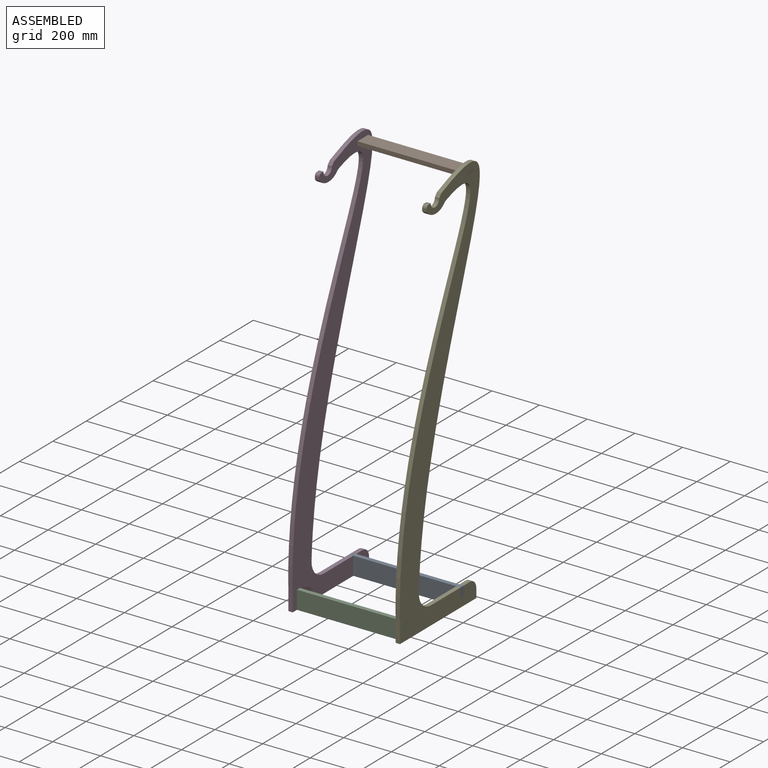
[diagram: assembled view]
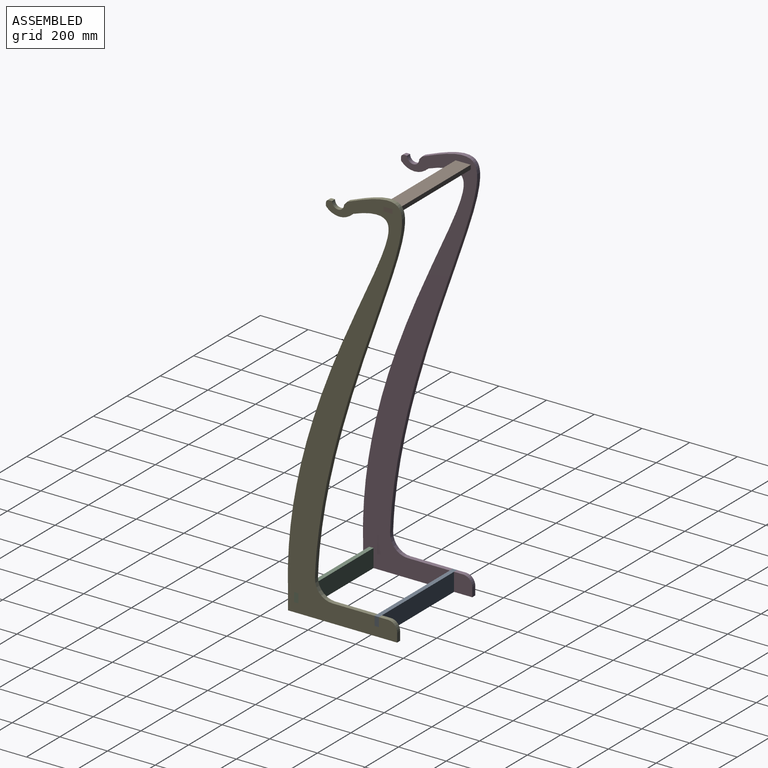
[diagram: assembled view, second angle]
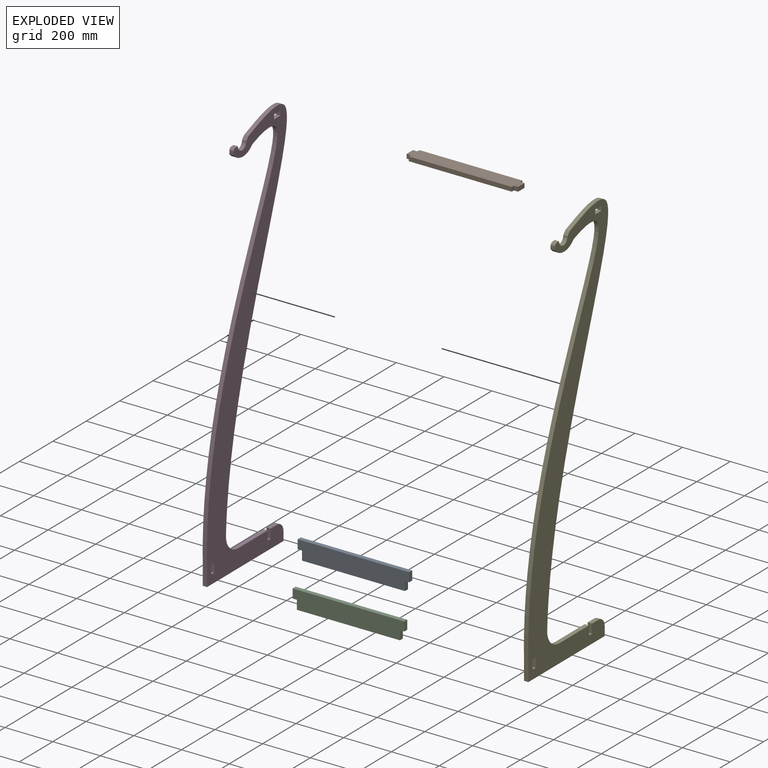
[diagram: exploded view]
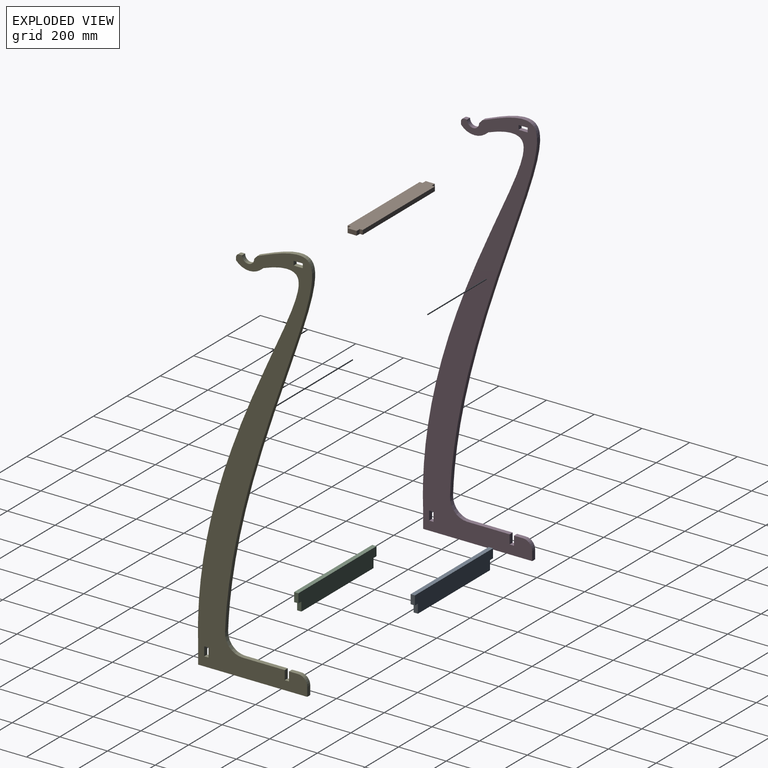
[diagram: exploded view, second angle]
ASSEMBLY  parts=5 mates=4
PART A: 10 faces, bbox 467.9x18x76.2 mm
  f0: plane 38.1x18.03mm, normal (1,0,0), area 687.1mm2, adj f1,f7,f8,f9
  f1: plane 18.03x18.03mm, normal (0,0,-1), area 325.2mm2, adj f0,f2,f8,f9
  f2: plane 38.1x18.03mm, normal (1,0,0), area 687.1mm2, adj f1,f3,f8,f9
  f3: plane 467.87x18.03mm, normal (0,0,1), area 8437.5mm2, adj f2,f4,f8,f9
  f4: plane 38.1x18.03mm, normal (-1,0,0), area 687.1mm2, adj f3,f5,f8,f9
  f5: plane 18.03x18.03mm, normal (0,0,-1), area 325.2mm2, adj f4,f6,f8,f9
  f6: plane 38.1x18.03mm, normal (-1,0,0), area 687.1mm2, adj f5,f7,f8,f9
  f7: plane 431.8x18.03mm, normal (0,0,-1), area 7787.1mm2, adj f0,f6,f8,f9
  f8: plane 467.87x76.2mm, normal (0,-1,0), area 34277.4mm2, adj f0,f1,f2,f3,f4,f5,f6,f7
  f9: plane 467.87x76.2mm, normal (0,1,0), area 34277.4mm2, adj f0,f1,f2,f3,f4,f5,f6,f7
PART B: 14 faces, bbox 467.9x18x63.5 mm
  f0: plane 18.03x18.03mm, normal (0,0,-1), area 325.2mm2, adj f1,f11,f12,f13
  f1: plane 18.03x12.7mm, normal (-1,0,0), area 229mm2, adj f0,f2,f12,f13
  f2: plane 431.8x18.03mm, normal (0,0,-1), area 7787.1mm2, adj f1,f3,f12,f13
  f3: plane 18.03x12.7mm, normal (1,0,0), area 229mm2, adj f2,f4,f12,f13
  f4: plane 18.03x18.03mm, normal (0,0,-1), area 325.2mm2, adj f3,f5,f12,f13
  f5: plane 38.1x18.03mm, normal (1,0,0), area 687.1mm2, adj f4,f6,f12,f13
  f6: plane 18.03x18.03mm, normal (0,0,1), area 325.2mm2, adj f5,f7,f12,f13
  f7: plane 18.03x12.7mm, normal (1,0,0), area 229mm2, adj f6,f8,f12,f13
  f8: plane 431.8x18.03mm, normal (0,0,1), area 7787.1mm2, adj f7,f9,f12,f13
  f9: plane 18.03x12.7mm, normal (-1,0,0), area 229mm2, adj f8,f10,f12,f13
  f10: plane 18.03x18.03mm, normal (0,0,1), area 325.2mm2, adj f9,f11,f12,f13
  f11: plane 38.1x18.03mm, normal (-1,0,0), area 687.1mm2, adj f0,f10,f12,f13
  f12: plane 467.87x63.5mm, normal (0,-1,0), area 28793.5mm2, adj f0,f1,f2,f3,f4,f5,f6,f7
  f13: plane 467.87x63.5mm, normal (0,1,0), area 28793.5mm2, adj f0,f1,f2,f3,f4,f5,f6,f7
PART C: same geometry as A
PART D: 28 faces, bbox 568.9x18x1738 mm
  f0: plane 38.1x18.03mm, normal (0,0,1), area 687.1mm2, adj f1,f25,f26,f27
  f1: plane 18.03x18.03mm, normal (1,0,0), area 325.2mm2, adj f0,f2,f26,f27
  f2: plane 38.1x18.03mm, normal (0,0,-1), area 687.1mm2, adj f1,f25,f26,f27
  f3: extruded ~1522.97x421.88mm, area 31258.7mm2, adj f4,f23,f26,f27
  f4: plane 76.2x18.03mm, normal (-1,0,0), area 1374.2mm2, adj f3,f5,f26,f27
  f5: plane 457.2x18.03mm, normal (0,0,-1), area 8245.1mm2, adj f4,f6,f26,f27
  f6: plane 38.1x18.03mm, normal (1,0,0), area 687.1mm2, adj f5,f7,f26,f27
  f7: cylinder r=38.1mm len=38.1mm, axis (0,1,0), area 1079.3mm2, adj f6,f8,f26,f27
  f8: plane 38.1x18.03mm, normal (0,0,1), area 687.1mm2, adj f7,f9,f26,f27
  f9: plane 38.1x18.03mm, normal (-1,0,0), area 687.1mm2, adj f8,f10,f26,f27
  f10: plane 18.03x18.03mm, normal (0,0,1), area 325.2mm2, adj f9,f11,f26,f27
  f11: plane 38.1x18.03mm, normal (1,0,0), area 687.1mm2, adj f10,f12,f26,f27
  f12: plane 177.68x18.03mm, normal (0,0,1), area 3204.3mm2, adj f11,f13,f26,f27
  f13: cylinder r=72.43mm len=75.13mm, axis (0,1,0), area 2100.5mm2, adj f12,f14,f26,f27
  f14: extruded ~1513.2x365.02mm, area 32102.9mm2, adj f13,f15,f26,f27
  f15: plane 18.03x14.2mm, normal (-0.75,0,0.67), area 343.5mm2, adj f14,f16,f26,f27
  f16: cylinder r=25.4mm len=50.8mm, axis (0,1,0), area 1439mm2, adj f15,f17,f26,f27
  f17: plane 18.03x12.7mm, normal (0,0,1), area 229mm2, adj f16,f18,f26,f27
  f18: cylinder r=12.7mm len=18.03mm, axis (0,1,0), area 359.8mm2, adj f17,f19,f26,f27
  f19: plane 18.03x12.7mm, normal (-1,0,0), area 229mm2, adj f18,f23,f26,f27
  f20: plane 38.1x18.03mm, normal (1,0,0), area 687.1mm2, adj f21,f24,f26,f27
  f21: plane 18.03x18.03mm, normal (0,0,-1), area 325.2mm2, adj f20,f22,f26,f27
  f22: plane 38.1x18.03mm, normal (-1,0,0), area 687.1mm2, adj f21,f24,f26,f27
  f23: cylinder r=74.17mm len=112.09mm, axis (0,1,0), area 2291.5mm2, adj f3,f19,f26,f27
  f24: plane 18.03x18.03mm, normal (0,0,1), area 325.2mm2, adj f20,f22,f26,f27
  f25: plane 18.03x18.03mm, normal (-1,0,0), area 325.2mm2, adj f0,f2,f26,f27
  f26: plane 1737.98x568.87mm, normal (0,-1,0), area 198965.3mm2, adj f0,f1,f2,f3,f4,f5,f6,f7
  f27: plane 1737.98x568.87mm, normal (0,1,0), area 198965.3mm2, adj f0,f1,f2,f3,f4,f5,f6,f7
PART E: same geometry as D
PLACE A rot(axis=(-0.12,0.05,0.99),0deg) t=(207.4,266.84,69.63)mm
PLACE B rot(axis=(1,0,0),90deg) t=(207.4,362.37,1630.74)mm
PLACE C rot(axis=(0,0,-1),180deg) t=(1236.1,-88.76,69.63)mm
PLACE D rot(axis=(0,0,1),90deg) t=(487.82,95.39,69.63)mm fixed
PLACE E rot(axis=(0,0,1),90deg) t=(937.65,95.39,69.63)mm
MATE fastened D.f26 <-> A.f6  axis (1,0,0) through (505.85,257.83,31.53)mm
MATE fastened B.f7 <-> E.f27  axis (1,0,0) through (937.65,286.17,1621.73)mm
MATE fastened D.f26 <-> C.f0  axis (1,0,0) through (505.85,-79.74,31.53)mm
MATE fastened E.f27 <-> C.f6  axis (-1,0,0) through (937.65,-79.74,31.53)mm
